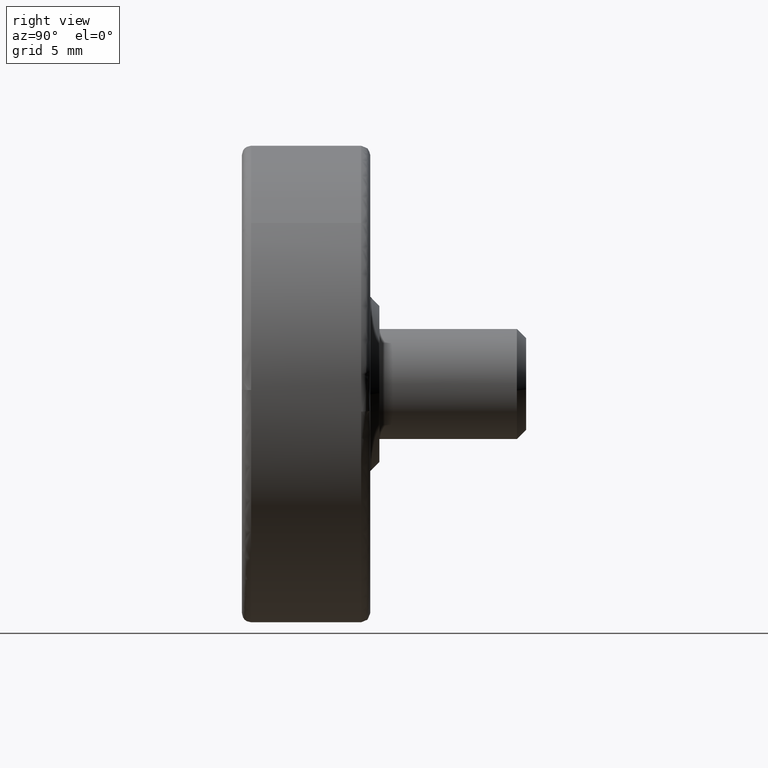
[diagram: clean part render]
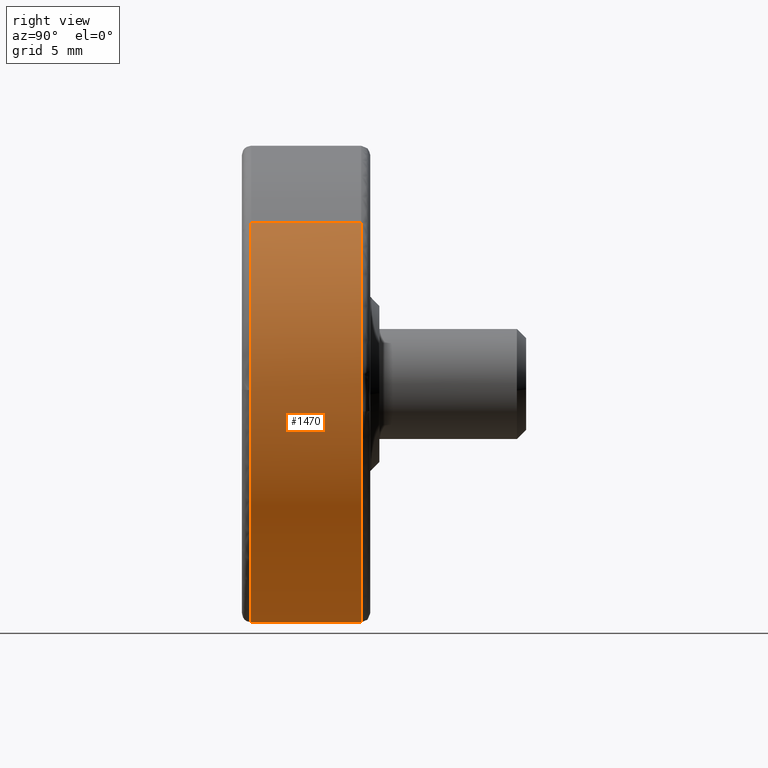
[diagram: same view with one face highlighted and labeled with its STEP entity id]
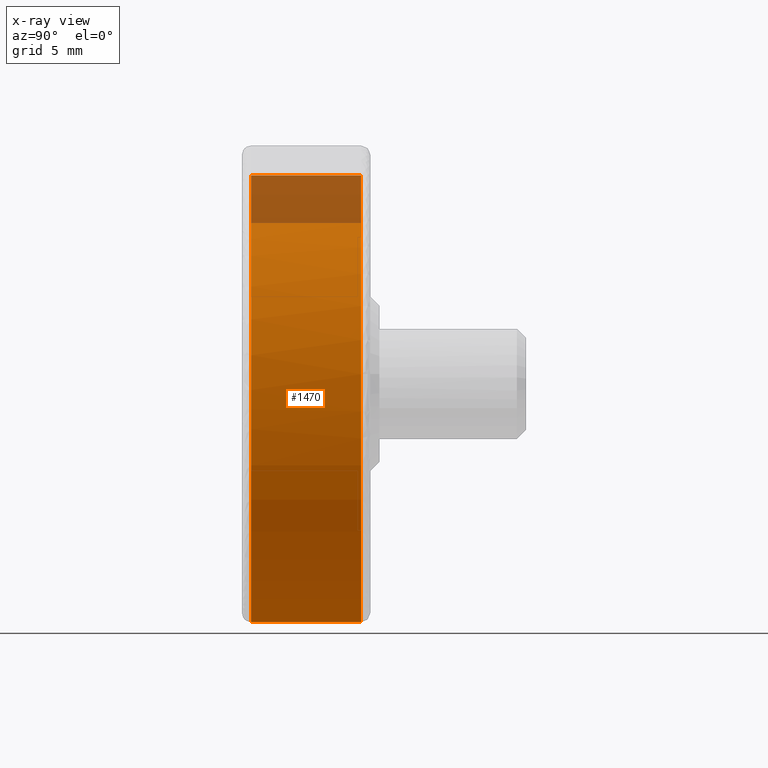
[diagram: x-ray of the same camera — body ghosted, the highlighted face saturated]
A machine part, right view. The second image highlights one B-rep face of the part: STEP entity #1470.
The next image is the same camera in x-ray: the body ghosted, the highlighted face saturated — about 11% of this face is hidden behind the body in this view.
In plain terms, the highlighted face is a freeform B-spline surface patch.
Its self-contained STEP definition (entity closure, byte-faithful):
#1302=CARTESIAN_POINT('',(-6.294856519306932,6.650000000173203,11.374303556760690));
#1303=CARTESIAN_POINT('',(-7.644982926585763,6.650000000173204,10.627105983358847));
#1304=CARTESIAN_POINT('',(-8.782672699003580,6.650000000173204,9.584605378531609));
#1305=CARTESIAN_POINT('',(-18.367278077535193,6.650000000173204,0.801932679528029));
#1306=CARTESIAN_POINT('',(-9.584605378531609,6.650000000173204,-8.782672699003580));
#1307=CARTESIAN_POINT('',(-0.801932679528029,6.650000000173204,-18.367278077535193));
#1308=CARTESIAN_POINT('',(8.782672699003580,6.650000000173204,-9.584605378531609));
#1309=CARTESIAN_POINT('',(18.367278077535193,6.650000000173204,-0.801932679528029));
#1310=CARTESIAN_POINT('',(9.584605378531609,6.650000000173204,8.782672699003580));
#1311=CARTESIAN_POINT('',(-6.294856519306932,0.346249999979084,11.374303556760690));
#1312=CARTESIAN_POINT('',(-7.644982926585763,0.346249999979084,10.627105983358847));
#1313=CARTESIAN_POINT('',(-8.782672699003580,0.346249999979084,9.584605378531609));
#1314=CARTESIAN_POINT('',(-18.367278077535193,0.346249999979084,0.801932679528029));
#1315=CARTESIAN_POINT('',(-9.584605378531609,0.346249999979084,-8.782672699003580));
#1316=CARTESIAN_POINT('',(-0.801932679528029,0.346249999979084,-18.367278077535193));
#1317=CARTESIAN_POINT('',(8.782672699003580,0.346249999979084,-9.584605378531609));
#1318=CARTESIAN_POINT('',(18.367278077535193,0.346249999979084,-0.801932679528029));
#1319=CARTESIAN_POINT('',(9.584605378531609,0.346249999979084,8.782672699003580));
#1327=(BOUNDED_SURFACE()B_SPLINE_SURFACE(2,1,((#1302,#1311),(#1303,#1312),(#1304,#1313),(#1305,#1314),(#1306,#1315),(#1307,#1316),(#1308,#1317),(#1309,#1318),(#1310,#1319)),.UNSPECIFIED.,.F.,.F.,.U.)B_SPLINE_SURFACE_WITH_KNOTS((3,2,2,2,3),(2,2),(0.0,3.446256838944152,24.985362082345091,46.524467325746024,68.063572569146956),(0.0,6.303750000194121),.UNSPECIFIED.)GEOMETRIC_REPRESENTATION_ITEM()RATIONAL_B_SPLINE_SURFACE(((0.921270302782944,0.921270302782944),(0.953137084989848,0.953137084989848),(1.0,1.0),(0.707106781186548,0.707106781186548),(1.0,1.0),(0.707106781186548,0.707106781186548),(1.0,1.0),(0.707106781186548,0.707106781186548),(1.0,1.0)))REPRESENTATION_ITEM('')SURFACE());
#1328=CARTESIAN_POINT('',(-6.294854510387270,0.499999999997908,11.374304668552330));
#1329=VERTEX_POINT('',#1328);
#1330=CARTESIAN_POINT('',(-12.995894460682891,0.499999999983818,0.326691240763544));
#1331=VERTEX_POINT('',#1330);
#1332=CARTESIAN_POINT('',(-6.294854510387270,0.499999999997908,11.374304668552334));
#1333=CARTESIAN_POINT('',(-12.808801748854281,0.499999999993321,7.769306266508861));
#1334=CARTESIAN_POINT('',(-12.995894460682898,0.499999999983819,0.326691240763544));
#1342=(BOUNDED_CURVE()B_SPLINE_CURVE(2,(#1332,#1333,#1334),.UNSPECIFIED.,.F.,.U.)B_SPLINE_CURVE_WITH_KNOTS((3,3),(0.582484261791916,0.745579891769803),.UNSPECIFIED.)CURVE()GEOMETRIC_REPRESENTATION_ITEM()RATIONAL_B_SPLINE_CURVE((0.870495159113431,0.805504439765902,0.989826157681565))REPRESENTATION_ITEM(''));
#1343=EDGE_CURVE('',#1329,#1331,#1342,.T.);
#1344=ORIENTED_EDGE('',*,*,#1343,.F.);
#1345=CARTESIAN_POINT('',(-6.294854439516534,6.500000000020950,11.374304707774151));
#1346=VERTEX_POINT('',#1345);
#1347=CARTESIAN_POINT('',(-6.294854439516534,6.500000000020950,11.374304707774151));
#1348=CARTESIAN_POINT('',(-6.294854510387270,0.499999999997908,11.374304668552330));
#1349=QUASI_UNIFORM_CURVE('',1,(#1347,#1348),.UNSPECIFIED.,.F.,.U.);
#1350=EDGE_CURVE('',#1346,#1329,#1349,.T.);
#1351=ORIENTED_EDGE('',*,*,#1350,.F.);
#1352=CARTESIAN_POINT('',(-13.0,6.500000000167523,0.0));
#1353=VERTEX_POINT('',#1352);
#1354=CARTESIAN_POINT('',(-6.294854439516534,6.500000000020949,11.374304707774151));
#1355=CARTESIAN_POINT('',(-12.999999999999964,6.500000000068768,7.663491925506884));
#1356=CARTESIAN_POINT('',(-12.999999999999996,6.500000000167523,0.0));
#1364=(BOUNDED_CURVE()B_SPLINE_CURVE(2,(#1354,#1355,#1356),.UNSPECIFIED.,.F.,.U.)B_SPLINE_CURVE_WITH_KNOTS((3,3),(0.582484260833104,0.749999999999999),.UNSPECIFIED.)CURVE()GEOMETRIC_REPRESENTATION_ITEM()RATIONAL_B_SPLINE_CURVE((0.870495159877570,0.803743103813973,0.999999999999998))REPRESENTATION_ITEM(''));
#1365=EDGE_CURVE('',#1346,#1353,#1364,.T.);
#1366=ORIENTED_EDGE('',*,*,#1365,.T.);
#1367=CARTESIAN_POINT('',(0.0,6.500000000000000,-13.0));
#1368=VERTEX_POINT('',#1367);
#1369=CARTESIAN_POINT('',(-13.0,6.500000000167523,0.0));
#1370=CARTESIAN_POINT('',(-13.0,6.500000000000000,-13.0));
#1371=CARTESIAN_POINT('',(0.0,6.500000000000000,-13.0));
#1379=(BOUNDED_CURVE()B_SPLINE_CURVE(2,(#1369,#1370,#1371),.UNSPECIFIED.,.F.,.U.)B_SPLINE_CURVE_WITH_KNOTS((3,3),(0.750000000000000,1.0),.UNSPECIFIED.)CURVE()GEOMETRIC_REPRESENTATION_ITEM()RATIONAL_B_SPLINE_CURVE((1.0,0.707106781186547,1.0))REPRESENTATION_ITEM(''));
#1380=EDGE_CURVE('',#1353,#1368,#1379,.T.);
#1381=ORIENTED_EDGE('',*,*,#1380,.T.);
#1382=CARTESIAN_POINT('',(12.913051304205510,6.500000000168585,-1.501034981256744));
#1383=VERTEX_POINT('',#1382);
#1384=CARTESIAN_POINT('',(0.0,6.500000000000000,-13.0));
#1385=CARTESIAN_POINT('',(11.576392110741637,6.500000000000001,-13.000000000000002));
#1386=CARTESIAN_POINT('',(12.913051304205508,6.500000000168585,-1.501034981256744));
#1394=(BOUNDED_CURVE()B_SPLINE_CURVE(2,(#1384,#1385,#1386),.UNSPECIFIED.,.F.,.U.)B_SPLINE_CURVE_WITH_KNOTS((3,3),(0.0,0.229999999999875),.UNSPECIFIED.)CURVE()GEOMETRIC_REPRESENTATION_ITEM()RATIONAL_B_SPLINE_CURVE((1.0,0.730538238691770,0.956886118190413))REPRESENTATION_ITEM(''));
#1395=EDGE_CURVE('',#1368,#1383,#1394,.T.);
#1396=ORIENTED_EDGE('',*,*,#1395,.T.);
#1397=CARTESIAN_POINT('',(9.584605850357686,6.500000000000001,8.782672184095716));
#1398=VERTEX_POINT('',#1397);
#1399=CARTESIAN_POINT('',(12.913051304205508,6.500000000168585,-1.501034981256744));
#1400=CARTESIAN_POINT('',(13.0,6.500000000000000,-0.753035778277233));
#1401=CARTESIAN_POINT('',(13.0,6.500000000000000,-1.904718E-016));
#1402=CARTESIAN_POINT('',(13.000000000000005,6.500000000000000,5.055422710082578));
#1403=CARTESIAN_POINT('',(9.584605850357686,6.500000000000001,8.782672184095716));
#1411=(BOUNDED_CURVE()B_SPLINE_CURVE(2,(#1399,#1400,#1401,#1402,#1403),.UNSPECIFIED.,.F.,.U.)B_SPLINE_CURVE_WITH_KNOTS((3,2,3),(0.229999999999875,0.250000000000000,0.368415192864190),.UNSPECIFIED.)CURVE()GEOMETRIC_REPRESENTATION_ITEM()RATIONAL_B_SPLINE_CURVE((0.956886118190413,0.976568542494777,1.0,0.861267972022367,0.853959782840026))REPRESENTATION_ITEM(''));
#1412=EDGE_CURVE('',#1383,#1398,#1411,.T.);
#1413=ORIENTED_EDGE('',*,*,#1412,.T.);
#1414=CARTESIAN_POINT('',(9.584605856251752,0.500000000000005,8.782672177663475));
#1415=VERTEX_POINT('',#1414);
#1416=CARTESIAN_POINT('',(9.584605850357686,6.500000000000001,8.782672184095716));
#1417=CARTESIAN_POINT('',(9.584605856251752,0.500000000000005,8.782672177663475));
#1418=QUASI_UNIFORM_CURVE('',1,(#1416,#1417),.UNSPECIFIED.,.F.,.U.);
#1419=EDGE_CURVE('',#1398,#1415,#1418,.T.);
#1420=ORIENTED_EDGE('',*,*,#1419,.T.);
#1421=CARTESIAN_POINT('',(12.995894460682891,0.499999999983818,-0.326691240763541));
#1422=VERTEX_POINT('',#1421);
#1423=CARTESIAN_POINT('',(12.995894460682900,0.499999999983818,-0.326691240763541));
#1424=CARTESIAN_POINT('',(13.0,0.500000000000000,-0.163371417604090));
#1425=CARTESIAN_POINT('',(13.0,0.500000000000000,-1.904718E-016));
#1426=CARTESIAN_POINT('',(12.999999999999998,0.500000000000000,5.055422700038899));
#1427=CARTESIAN_POINT('',(9.584605856251752,0.500000000000005,8.782672177663475));
#1435=(BOUNDED_CURVE()B_SPLINE_CURVE(2,(#1423,#1424,#1425,#1426,#1427),.UNSPECIFIED.,.F.,.U.)B_SPLINE_CURVE_WITH_KNOTS((3,2,3),(0.245579891769803,0.250000000000000,0.368415192661570),.UNSPECIFIED.)CURVE()GEOMETRIC_REPRESENTATION_ITEM()RATIONAL_B_SPLINE_CURVE((0.989826157681567,0.994821521091815,1.0,0.861267972259750,0.853959782865036))REPRESENTATION_ITEM(''));
#1436=EDGE_CURVE('',#1422,#1415,#1435,.T.);
#1437=ORIENTED_EDGE('',*,*,#1436,.F.);
#1438=CARTESIAN_POINT('',(0.0,0.500000000000000,-13.0));
#1439=VERTEX_POINT('',#1438);
#1440=CARTESIAN_POINT('',(0.0,0.500000000000000,-13.0));
#1441=CARTESIAN_POINT('',(12.677312390348131,0.500000000000000,-13.000000000000002));
#1442=CARTESIAN_POINT('',(12.995894460682891,0.499999999983818,-0.326691240763541));
#1450=(BOUNDED_CURVE()B_SPLINE_CURVE(2,(#1440,#1441,#1442),.UNSPECIFIED.,.F.,.U.)B_SPLINE_CURVE_WITH_KNOTS((3,3),(0.0,0.245579891769803),.UNSPECIFIED.)CURVE()GEOMETRIC_REPRESENTATION_ITEM()RATIONAL_B_SPLINE_CURVE((1.0,0.712285260094732,0.989826157681567))REPRESENTATION_ITEM(''));
#1451=EDGE_CURVE('',#1439,#1422,#1450,.T.);
#1452=ORIENTED_EDGE('',*,*,#1451,.F.);
#1453=CARTESIAN_POINT('',(-12.995894460682891,0.499999999983818,0.326691240763544));
#1454=CARTESIAN_POINT('',(-13.0,0.500000000000000,0.163371417604091));
#1455=CARTESIAN_POINT('',(-13.0,0.500000000000000,-1.904718E-016));
#1456=CARTESIAN_POINT('',(-13.0,0.500000000000000,-13.0));
#1457=CARTESIAN_POINT('',(0.0,0.500000000000000,-13.0));
#1465=(BOUNDED_CURVE()B_SPLINE_CURVE(2,(#1453,#1454,#1455,#1456,#1457),.UNSPECIFIED.,.F.,.U.)B_SPLINE_CURVE_WITH_KNOTS((3,2,3),(0.745579891769803,0.750000000000000,1.0),.UNSPECIFIED.)CURVE()GEOMETRIC_REPRESENTATION_ITEM()RATIONAL_B_SPLINE_CURVE((0.989826157681567,0.994821521091815,1.0,0.707106781186547,1.0))REPRESENTATION_ITEM(''));
#1466=EDGE_CURVE('',#1331,#1439,#1465,.T.);
#1467=ORIENTED_EDGE('',*,*,#1466,.F.);
#1468=EDGE_LOOP('',(#1344,#1351,#1366,#1381,#1396,#1413,#1420,#1437,#1452,#1467));
#1469=FACE_OUTER_BOUND('',#1468,.T.);
#1470=ADVANCED_FACE('',(#1469),#1327,.T.);